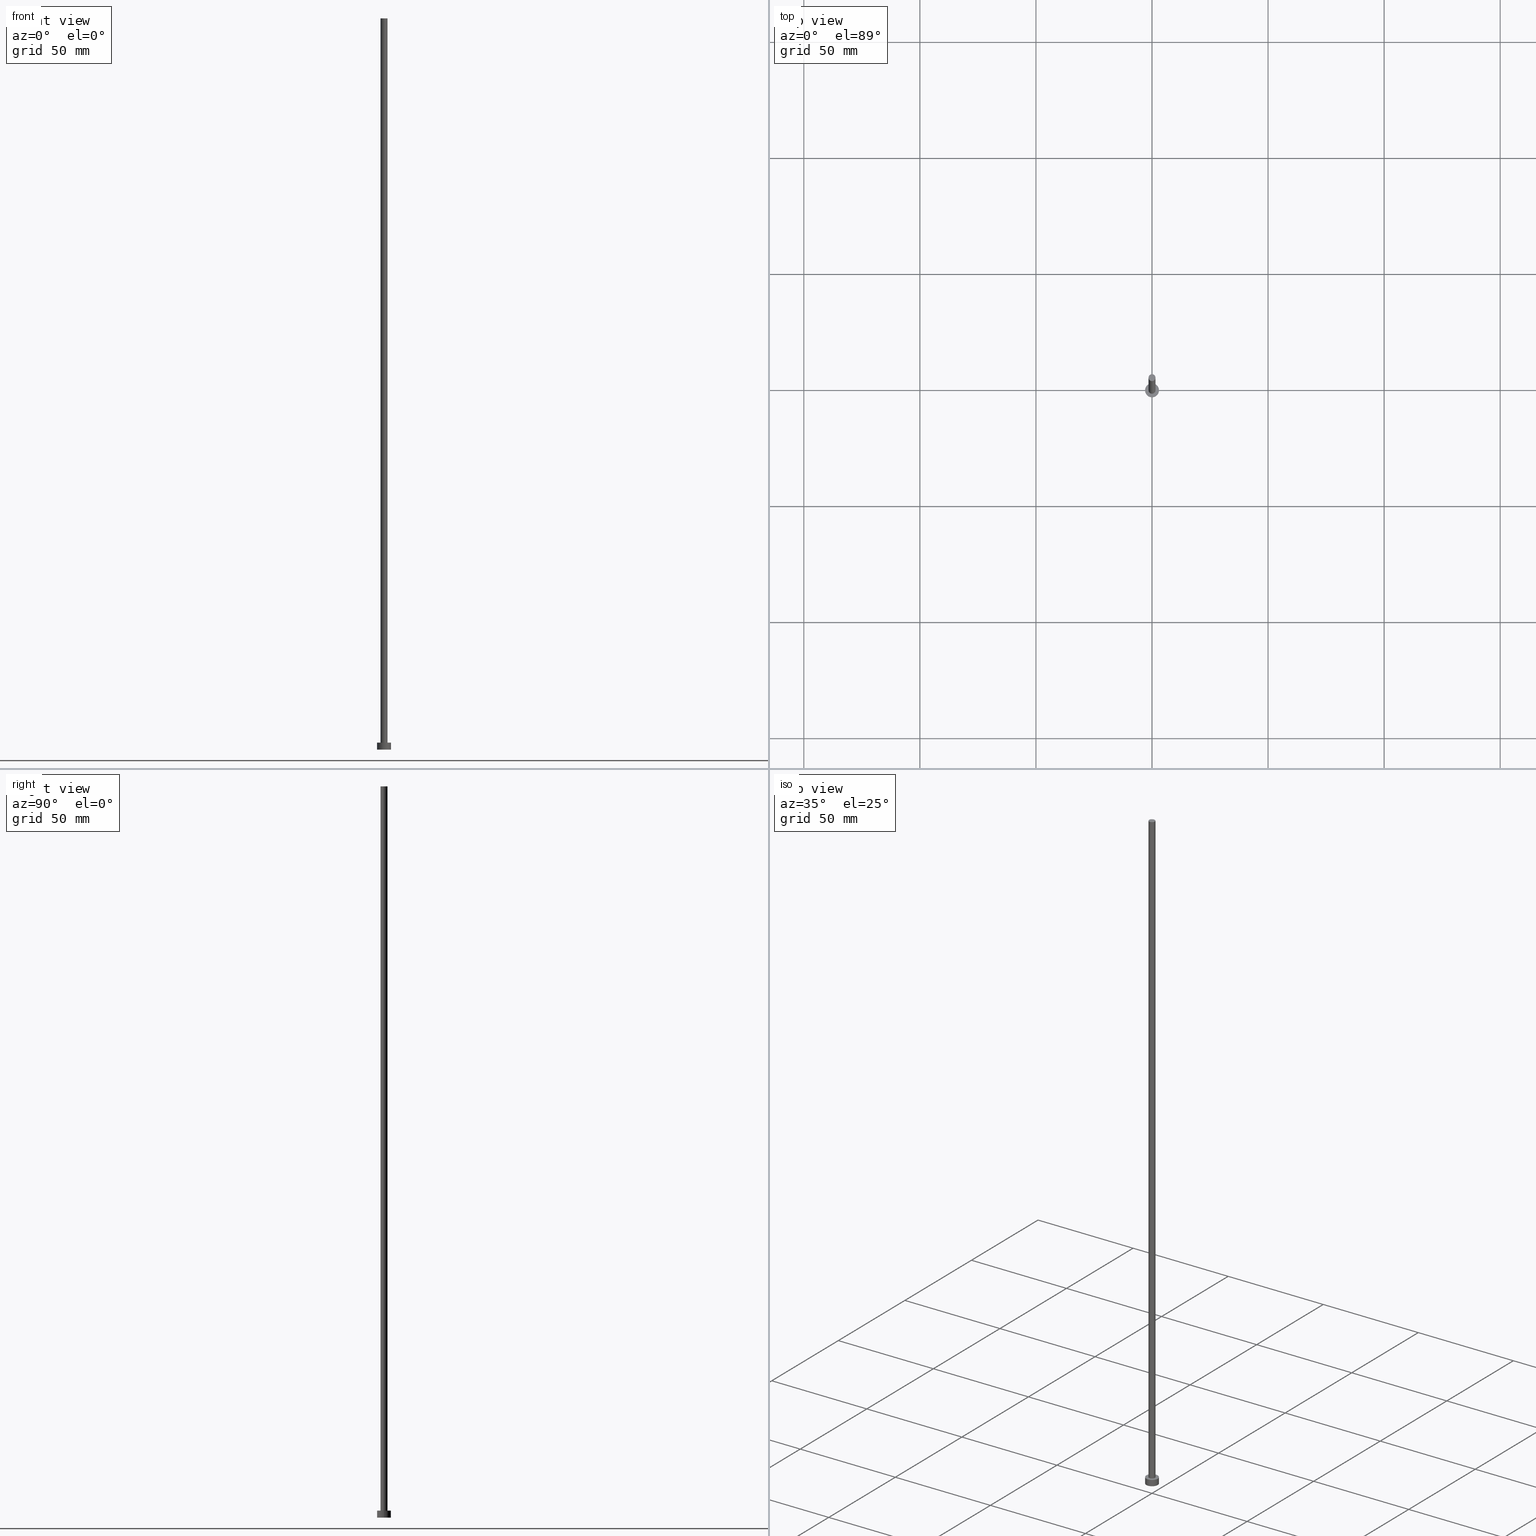
[diagram: canonical four-view strip — front | top / right | iso, engineering-drawing reading convention]
A machine part, canonical four-view strip (front | top / right | iso — engineering-drawing reading convention). The complete STEP part file that produces these views, byte-faithful:
ISO-10303-21;
HEADER;
FILE_DESCRIPTION (( 'STEP AP203' ),
    '1' );
FILE_NAME ('ddd5.STEP',
    '2023-02-12T12:13:03',
    ( '' ),
    ( '' ),
    'SwSTEP 2.0',
    'SolidWorks 2019',
    '' );
FILE_SCHEMA (( 'CONFIG_CONTROL_DESIGN' ));
ENDSEC;

DATA;
#1 = DIRECTION ( 'NONE',  ( 1.000000000000000000, 0.000000000000000000, 0.000000000000000000 ) ) ;
#2 = DIRECTION ( 'NONE',  ( -0.000000000000000000, -0.000000000000000000, -1.000000000000000000 ) ) ;
#3 = ORIENTED_EDGE ( 'NONE', *, *, #143, .F. ) ;
#4 = EDGE_LOOP ( 'NONE', ( #127, #204, #118, #193 ) ) ;
#5 = EDGE_LOOP ( 'NONE', ( #34, #139 ) ) ;
#6 = COORDINATED_UNIVERSAL_TIME_OFFSET ( 1, 0, .AHEAD. ) ;
#7 = CARTESIAN_POINT ( 'NONE',  ( -3.000000000000000444, 0.000000000000000000, 0.000000000000000000 ) ) ;
#8 = PERSON_AND_ORGANIZATION ( #69, #153 ) ;
#9 = DIRECTION ( 'NONE',  ( -0.000000000000000000, -0.000000000000000000, -1.000000000000000000 ) ) ;
#10 = CARTESIAN_POINT ( 'NONE',  ( 0.000000000000000000, 0.000000000000000000, 3.000000000000000000 ) ) ;
#11 = AXIS2_PLACEMENT_3D ( 'NONE', #239, #178, #254 ) ;
#12 = LINE ( 'NONE', #212, #20 ) ;
#13 = EDGE_CURVE ( 'NONE', #119, #244, #164, .T. ) ;
#14 = CARTESIAN_POINT ( 'NONE',  ( 3.000000000000000444, 3.673940397442060361E-16, 0.000000000000000000 ) ) ;
#15 = CC_DESIGN_PERSON_AND_ORGANIZATION_ASSIGNMENT ( #124, #65, ( #19 ) ) ;
#16 = CARTESIAN_POINT ( 'NONE',  ( 0.000000000000000000, 0.000000000000000000, 0.000000000000000000 ) ) ;
#17 = CARTESIAN_POINT ( 'NONE',  ( 0.000000000000000000, 0.000000000000000000, 3.000000000000000000 ) ) ;
#18 = CARTESIAN_POINT ( 'NONE',  ( -1.500000000000000222, 0.000000000000000000, 3.000000000000000000 ) ) ;
#19 = PRODUCT_DEFINITION ( 'NEZN�M�', '', #221, #236 ) ;
#20 = VECTOR ( 'NONE', #57, 1000.000000000000000 ) ;
#21 = APPLICATION_PROTOCOL_DEFINITION ( 'international standard', 'config_control_design', 1994, #230 ) ;
#22 = EDGE_LOOP ( 'NONE', ( #155, #141 ) ) ;
#23 = APPROVAL_DATE_TIME ( #187, #135 ) ;
#24 = EDGE_CURVE ( 'NONE', #195, #131, #243, .T. ) ;
#25 = LINE ( 'NONE', #166, #42 ) ;
#26 = CALENDAR_DATE ( 2023, 12, 2 ) ;
#27 = AXIS2_PLACEMENT_3D ( 'NONE', #196, #158, #176 ) ;
#28 = CARTESIAN_POINT ( 'NONE',  ( 0.000000000000000000, 0.000000000000000000, 315.0000000000000000 ) ) ;
#29 = PERSON_AND_ORGANIZATION ( #69, #153 ) ;
#30 = CYLINDRICAL_SURFACE ( 'NONE', #198, 3.000000000000000444 ) ;
#31 = APPROVAL_DATE_TIME ( #49, #229 ) ;
#32 = APPROVAL_PERSON_ORGANIZATION ( #129, #181, #163 ) ;
#33 =( NAMED_UNIT ( * ) PLANE_ANGLE_UNIT ( ) SI_UNIT ( $, .RADIAN. ) );
#34 = ORIENTED_EDGE ( 'NONE', *, *, #77, .F. ) ;
#35 = CARTESIAN_POINT ( 'NONE',  ( 0.000000000000000000, 0.000000000000000000, 315.0000000000000000 ) ) ;
#36 = DIRECTION ( 'NONE',  ( 1.000000000000000000, 0.000000000000000000, 0.000000000000000000 ) ) ;
#37 = DIRECTION ( 'NONE',  ( -1.000000000000000000, 0.000000000000000000, 0.000000000000000000 ) ) ;
#38 = ADVANCED_FACE ( 'NONE', ( #206 ), #30, .T. ) ;
#39 = CC_DESIGN_APPROVAL ( #181, ( #19 ) ) ;
#40 = ORIENTED_EDGE ( 'NONE', *, *, #237, .F. ) ;
#41 = APPROVAL_DATE_TIME ( #50, #181 ) ;
#42 = VECTOR ( 'NONE', #109, 1000.000000000000000 ) ;
#43 = PERSON_AND_ORGANIZATION ( #69, #153 ) ;
#44 = CALENDAR_DATE ( 2023, 12, 2 ) ;
#45 = DIRECTION ( 'NONE',  ( 1.000000000000000000, 0.000000000000000000, 0.000000000000000000 ) ) ;
#46 = APPLICATION_PROTOCOL_DEFINITION ( 'international standard', 'config_control_design', 1994, #157 ) ;
#47 = EDGE_CURVE ( 'NONE', #182, #195, #25, .T. ) ;
#48 = AXIS2_PLACEMENT_3D ( 'NONE', #126, #64, #251 ) ;
#49 = DATE_AND_TIME ( #44, #248 ) ;
#50 = DATE_AND_TIME ( #26, #74 ) ;
#51 = ORIENTED_EDGE ( 'NONE', *, *, #249, .T. ) ;
#52 = CARTESIAN_POINT ( 'NONE',  ( 0.000000000000000000, 0.000000000000000000, 0.000000000000000000 ) ) ;
#53 = CC_DESIGN_SECURITY_CLASSIFICATION ( #63, ( #221 ) ) ;
#54 = FACE_OUTER_BOUND ( 'NONE', #4, .T. ) ;
#55 = PRODUCT ( 'ddd5', 'ddd5', '', ( #160 ) ) ;
#56 = ORIENTED_EDGE ( 'NONE', *, *, #110, .T. ) ;
#57 = DIRECTION ( 'NONE',  ( -0.000000000000000000, -0.000000000000000000, -1.000000000000000000 ) ) ;
#58 = CC_DESIGN_PERSON_AND_ORGANIZATION_ASSIGNMENT ( #43, #87, ( #221 ) ) ;
#59 = AXIS2_PLACEMENT_3D ( 'NONE', #35, #214, #81 ) ;
#60 = CARTESIAN_POINT ( 'NONE',  ( 0.000000000000000000, 0.000000000000000000, 315.0000000000000000 ) ) ;
#61 = ORIENTED_EDGE ( 'NONE', *, *, #85, .F. ) ;
#62 = DIRECTION ( 'NONE',  ( 0.000000000000000000, 0.000000000000000000, 1.000000000000000000 ) ) ;
#63 = SECURITY_CLASSIFICATION ( '', '', #192 ) ;
#64 = DIRECTION ( 'NONE',  ( -0.000000000000000000, -0.000000000000000000, -1.000000000000000000 ) ) ;
#65 = PERSON_AND_ORGANIZATION_ROLE ( 'creator' ) ;
#66 = DIRECTION ( 'NONE',  ( 1.000000000000000000, 0.000000000000000000, -0.000000000000000000 ) ) ;
#67 = DIRECTION ( 'NONE',  ( -1.000000000000000000, 0.000000000000000000, 0.000000000000000000 ) ) ;
#68 = EDGE_CURVE ( 'NONE', #244, #111, #190, .T. ) ;
#69 = PERSON ( 'NEUR�EN�', 'NEUR�EN�', 'NEUR�EN�', ('NEUR�EN�'), ('NEUR�EN�'), ('NEUR�EN�') ) ;
#70 = CYLINDRICAL_SURFACE ( 'NONE', #76, 1.500000000000000222 ) ;
#71 = ADVANCED_FACE ( 'NONE', ( #107 ), #89, .T. ) ;
#72 = UNCERTAINTY_MEASURE_WITH_UNIT (LENGTH_MEASURE( 1.000000000000000082E-05 ), #136, 'distance_accuracy_value', 'NONE');
#73 =( NAMED_UNIT ( * ) SI_UNIT ( $, .STERADIAN. ) SOLID_ANGLE_UNIT ( ) );
#74 = LOCAL_TIME ( 13, 13, 3.000000000000000000, #207 ) ;
#75 = ORIENTED_EDGE ( 'NONE', *, *, #110, .F. ) ;
#76 = AXIS2_PLACEMENT_3D ( 'NONE', #148, #223, #67 ) ;
#77 = EDGE_CURVE ( 'NONE', #131, #195, #133, .T. ) ;
#78 = LOCAL_TIME ( 13, 13, 3.000000000000000000, #6 ) ;
#79 = DIRECTION ( 'NONE',  ( 0.000000000000000000, 0.000000000000000000, 1.000000000000000000 ) ) ;
#80 = ORIENTED_EDGE ( 'NONE', *, *, #13, .T. ) ;
#81 = DIRECTION ( 'NONE',  ( 1.000000000000000000, 0.000000000000000000, 0.000000000000000000 ) ) ;
#82 = VERTEX_POINT ( 'NONE', #7 ) ;
#83 = AXIS2_PLACEMENT_3D ( 'NONE', #16, #200, #1 ) ;
#84 = CIRCLE ( 'NONE', #233, 1.500000000000000222 ) ;
#85 = EDGE_CURVE ( 'NONE', #182, #128, #84, .T. ) ;
#86 = CARTESIAN_POINT ( 'NONE',  ( 0.000000000000000000, 0.000000000000000000, 3.000000000000000000 ) ) ;
#87 = PERSON_AND_ORGANIZATION_ROLE ( 'design_supplier' ) ;
#88 = PLANE ( 'NONE',  #151 ) ;
#89 = CYLINDRICAL_SURFACE ( 'NONE', #48, 3.000000000000000444 ) ;
#90 = CARTESIAN_POINT ( 'NONE',  ( 3.000000000000000444, 3.673940397442060361E-16, 3.000000000000000000 ) ) ;
#91 = AXIS2_PLACEMENT_3D ( 'NONE', #203, #62, #165 ) ;
#92 = DIRECTION ( 'NONE',  ( -0.000000000000000000, -0.000000000000000000, -1.000000000000000000 ) ) ;
#93 = DIRECTION ( 'NONE',  ( 1.000000000000000000, 0.000000000000000000, 0.000000000000000000 ) ) ;
#94 = PRODUCT_DEFINITION_SHAPE ( 'NONE', 'NONE',  #19 ) ;
#95 = AXIS2_PLACEMENT_3D ( 'NONE', #17, #99, #36 ) ;
#96 = DIRECTION ( 'NONE',  ( 0.000000000000000000, 0.000000000000000000, 1.000000000000000000 ) ) ;
#97 = APPROVAL_PERSON_ORGANIZATION ( #241, #229, #180 ) ;
#98 = ADVANCED_FACE ( 'NONE', ( #253, #209 ), #88, .T. ) ;
#99 = DIRECTION ( 'NONE',  ( 0.000000000000000000, 0.000000000000000000, 1.000000000000000000 ) ) ;
#100 = CYLINDRICAL_SURFACE ( 'NONE', #142, 1.500000000000000222 ) ;
#101 = ORIENTED_EDGE ( 'NONE', *, *, #68, .T. ) ;
#102 = DIRECTION ( 'NONE',  ( 0.000000000000000000, 0.000000000000000000, 1.000000000000000000 ) ) ;
#103 = APPROVAL_ROLE ( '' ) ;
#104 = LOCAL_TIME ( 13, 13, 3.000000000000000000, #252 ) ;
#105 = ADVANCED_FACE ( 'NONE', ( #188 ), #70, .T. ) ;
#106 = DIRECTION ( 'NONE',  ( 0.000000000000000000, 0.000000000000000000, 1.000000000000000000 ) ) ;
#107 = FACE_OUTER_BOUND ( 'NONE', #202, .T. ) ;
#108 = CALENDAR_DATE ( 2023, 12, 2 ) ;
#109 = DIRECTION ( 'NONE',  ( -0.000000000000000000, -0.000000000000000000, -1.000000000000000000 ) ) ;
#110 = EDGE_CURVE ( 'NONE', #119, #82, #228, .T. ) ;
#111 = VERTEX_POINT ( 'NONE', #14 ) ;
#112 = CIRCLE ( 'NONE', #11, 3.000000000000000444 ) ;
#113 = DIRECTION ( 'NONE',  ( 1.000000000000000000, 0.000000000000000000, 0.000000000000000000 ) ) ;
#114 = AXIS2_PLACEMENT_3D ( 'NONE', #10, #102, #45 ) ;
#115 = CC_DESIGN_PERSON_AND_ORGANIZATION_ASSIGNMENT ( #29, #167, ( #221 ) ) ;
#116 = CIRCLE ( 'NONE', #197, 3.000000000000000444 ) ;
#117 = EDGE_CURVE ( 'NONE', #128, #182, #218, .T. ) ;
#118 = ORIENTED_EDGE ( 'NONE', *, *, #216, .T. ) ;
#119 = VERTEX_POINT ( 'NONE', #217 ) ;
#120 = CARTESIAN_POINT ( 'NONE',  ( 3.000000000000000444, 3.673940397442060361E-16, 3.000000000000000000 ) ) ;
#121 = EDGE_LOOP ( 'NONE', ( #168, #3 ) ) ;
#122 = PLANE ( 'NONE',  #226 ) ;
#123 =( GEOMETRIC_REPRESENTATION_CONTEXT ( 3 ) GLOBAL_UNCERTAINTY_ASSIGNED_CONTEXT ( ( #72 ) ) GLOBAL_UNIT_ASSIGNED_CONTEXT ( ( #136, #33, #73 ) ) REPRESENTATION_CONTEXT ( 'NONE', 'WORKASPACE' ) );
#124 = PERSON_AND_ORGANIZATION ( #69, #153 ) ;
#125 = AXIS2_PLACEMENT_3D ( 'NONE', #179, #161, #113 ) ;
#126 = CARTESIAN_POINT ( 'NONE',  ( 0.000000000000000000, 0.000000000000000000, 3.000000000000000000 ) ) ;
#127 = ORIENTED_EDGE ( 'NONE', *, *, #47, .F. ) ;
#128 = VERTEX_POINT ( 'NONE', #156 ) ;
#129 = PERSON_AND_ORGANIZATION ( #69, #153 ) ;
#130 = DATE_TIME_ROLE ( 'creation_date' ) ;
#131 = VERTEX_POINT ( 'NONE', #18 ) ;
#132 = CC_DESIGN_APPROVAL ( #229, ( #63 ) ) ;
#133 = CIRCLE ( 'NONE', #114, 1.500000000000000222 ) ;
#134 = CARTESIAN_POINT ( 'NONE',  ( 1.500000000000000222, 1.836970198721030181E-16, 315.0000000000000000 ) ) ;
#135 = APPROVAL ( #250, 'NEUR�EN�' ) ;
#136 =( LENGTH_UNIT ( ) NAMED_UNIT ( * ) SI_UNIT ( .MILLI., .METRE. ) );
#137 = ORIENTED_EDGE ( 'NONE', *, *, #237, .T. ) ;
#138 = FACE_OUTER_BOUND ( 'NONE', #22, .T. ) ;
#139 = ORIENTED_EDGE ( 'NONE', *, *, #24, .F. ) ;
#140 = SHAPE_DEFINITION_REPRESENTATION ( #94, #174 ) ;
#141 = ORIENTED_EDGE ( 'NONE', *, *, #85, .T. ) ;
#142 = AXIS2_PLACEMENT_3D ( 'NONE', #60, #2, #37 ) ;
#143 = EDGE_CURVE ( 'NONE', #111, #82, #116, .T. ) ;
#144 = DIRECTION ( 'NONE',  ( 1.000000000000000000, 0.000000000000000000, 0.000000000000000000 ) ) ;
#145 = PERSON_AND_ORGANIZATION_ROLE ( 'classification_officer' ) ;
#146 = ORIENTED_EDGE ( 'NONE', *, *, #216, .F. ) ;
#147 = APPROVAL_STATUS ( 'not_yet_approved' ) ;
#148 = CARTESIAN_POINT ( 'NONE',  ( 0.000000000000000000, 0.000000000000000000, 315.0000000000000000 ) ) ;
#149 = CC_DESIGN_PERSON_AND_ORGANIZATION_ASSIGNMENT ( #245, #227, ( #55 ) ) ;
#150 = ORIENTED_EDGE ( 'NONE', *, *, #68, .F. ) ;
#151 = AXIS2_PLACEMENT_3D ( 'NONE', #162, #106, #66 ) ;
#152 = DATE_TIME_ROLE ( 'classification_date' ) ;
#153 = ORGANIZATION ( 'NEUR�EN�', 'NEUR�EN�', '' ) ;
#154 = CARTESIAN_POINT ( 'NONE',  ( 1.500000000000000222, 1.836970198721030181E-16, 3.000000000000000000 ) ) ;
#155 = ORIENTED_EDGE ( 'NONE', *, *, #117, .T. ) ;
#156 = CARTESIAN_POINT ( 'NONE',  ( -1.500000000000000222, 0.000000000000000000, 315.0000000000000000 ) ) ;
#157 = APPLICATION_CONTEXT ( 'configuration controlled 3d designs of mechanical parts and assemblies' ) ;
#158 = DIRECTION ( 'NONE',  ( 0.000000000000000000, 0.000000000000000000, 1.000000000000000000 ) ) ;
#159 = ORIENTED_EDGE ( 'NONE', *, *, #47, .T. ) ;
#160 = MECHANICAL_CONTEXT ( 'NONE', #230, 'mechanical' ) ;
#161 = DIRECTION ( 'NONE',  ( 0.000000000000000000, 0.000000000000000000, 1.000000000000000000 ) ) ;
#162 = CARTESIAN_POINT ( 'NONE',  ( 0.000000000000000000, 0.000000000000000000, 3.000000000000000000 ) ) ;
#163 = APPROVAL_ROLE ( '' ) ;
#164 = CIRCLE ( 'NONE', #95, 3.000000000000000444 ) ;
#165 = DIRECTION ( 'NONE',  ( 1.000000000000000000, 0.000000000000000000, 0.000000000000000000 ) ) ;
#166 = CARTESIAN_POINT ( 'NONE',  ( 1.500000000000000222, 1.836970198721030181E-16, 315.0000000000000000 ) ) ;
#167 = PERSON_AND_ORGANIZATION_ROLE ( 'creator' ) ;
#168 = ORIENTED_EDGE ( 'NONE', *, *, #249, .F. ) ;
#169 = CIRCLE ( 'NONE', #83, 3.000000000000000444 ) ;
#170 = DIRECTION ( 'NONE',  ( 1.000000000000000000, 0.000000000000000000, -0.000000000000000000 ) ) ;
#171 = CALENDAR_DATE ( 2023, 12, 2 ) ;
#172 = ORIENTED_EDGE ( 'NONE', *, *, #13, .F. ) ;
#173 = PLANE ( 'NONE',  #27 ) ;
#174 = ADVANCED_BREP_SHAPE_REPRESENTATION ( 'ddd5', ( #199, #91 ), #123 ) ;
#175 = COORDINATED_UNIVERSAL_TIME_OFFSET ( 1, 0, .AHEAD. ) ;
#176 = DIRECTION ( 'NONE',  ( 1.000000000000000000, 0.000000000000000000, -0.000000000000000000 ) ) ;
#177 = APPROVAL_PERSON_ORGANIZATION ( #205, #135, #103 ) ;
#178 = DIRECTION ( 'NONE',  ( 0.000000000000000000, 0.000000000000000000, 1.000000000000000000 ) ) ;
#179 = CARTESIAN_POINT ( 'NONE',  ( 0.000000000000000000, 0.000000000000000000, 3.000000000000000000 ) ) ;
#180 = APPROVAL_ROLE ( '' ) ;
#181 = APPROVAL ( #147, 'NEUR�EN�' ) ;
#182 = VERTEX_POINT ( 'NONE', #134 ) ;
#183 = APPROVAL_STATUS ( 'not_yet_approved' ) ;
#184 = ORIENTED_EDGE ( 'NONE', *, *, #143, .T. ) ;
#185 = ADVANCED_FACE ( 'NONE', ( #54 ), #100, .T. ) ;
#186 = DIRECTION ( 'NONE',  ( 0.000000000000000000, 0.000000000000000000, 1.000000000000000000 ) ) ;
#187 = DATE_AND_TIME ( #108, #104 ) ;
#188 = FACE_OUTER_BOUND ( 'NONE', #215, .T. ) ;
#189 = VECTOR ( 'NONE', #92, 1000.000000000000000 ) ;
#190 = LINE ( 'NONE', #90, #234 ) ;
#191 = CC_DESIGN_PERSON_AND_ORGANIZATION_ASSIGNMENT ( #8, #145, ( #63 ) ) ;
#192 = SECURITY_CLASSIFICATION_LEVEL ( 'unclassified' ) ;
#193 = ORIENTED_EDGE ( 'NONE', *, *, #77, .T. ) ;
#194 = DIRECTION ( 'NONE',  ( -0.000000000000000000, -0.000000000000000000, -1.000000000000000000 ) ) ;
#195 = VERTEX_POINT ( 'NONE', #154 ) ;
#196 = CARTESIAN_POINT ( 'NONE',  ( 0.000000000000000000, 0.000000000000000000, 315.0000000000000000 ) ) ;
#197 = AXIS2_PLACEMENT_3D ( 'NONE', #52, #96, #93 ) ;
#198 = AXIS2_PLACEMENT_3D ( 'NONE', #86, #9, #247 ) ;
#199 = MANIFOLD_SOLID_BREP ( 'P�idat vysunut�m3', #238 ) ;
#200 = DIRECTION ( 'NONE',  ( 0.000000000000000000, 0.000000000000000000, 1.000000000000000000 ) ) ;
#201 = ADVANCED_FACE ( 'NONE', ( #138 ), #173, .T. ) ;
#202 = EDGE_LOOP ( 'NONE', ( #40, #101, #184, #75 ) ) ;
#203 = CARTESIAN_POINT ( 'NONE',  ( 0.000000000000000000, 0.000000000000000000, 0.000000000000000000 ) ) ;
#204 = ORIENTED_EDGE ( 'NONE', *, *, #117, .F. ) ;
#205 = PERSON_AND_ORGANIZATION ( #69, #153 ) ;
#206 = FACE_OUTER_BOUND ( 'NONE', #220, .T. ) ;
#207 = COORDINATED_UNIVERSAL_TIME_OFFSET ( 1, 0, .AHEAD. ) ;
#208 = CARTESIAN_POINT ( 'NONE',  ( -3.000000000000000444, 0.000000000000000000, 3.000000000000000000 ) ) ;
#209 = FACE_OUTER_BOUND ( 'NONE', #219, .T. ) ;
#210 = LOCAL_TIME ( 13, 13, 3.000000000000000000, #175 ) ;
#211 = CARTESIAN_POINT ( 'NONE',  ( 0.000000000000000000, 0.000000000000000000, 0.000000000000000000 ) ) ;
#212 = CARTESIAN_POINT ( 'NONE',  ( -1.500000000000000222, 0.000000000000000000, 315.0000000000000000 ) ) ;
#213 = ADVANCED_FACE ( 'NONE', ( #231 ), #122, .F. ) ;
#214 = DIRECTION ( 'NONE',  ( 0.000000000000000000, 0.000000000000000000, 1.000000000000000000 ) ) ;
#215 = EDGE_LOOP ( 'NONE', ( #61, #159, #235, #146 ) ) ;
#216 = EDGE_CURVE ( 'NONE', #128, #131, #12, .T. ) ;
#217 = CARTESIAN_POINT ( 'NONE',  ( -3.000000000000000444, 0.000000000000000000, 3.000000000000000000 ) ) ;
#218 = CIRCLE ( 'NONE', #59, 1.500000000000000222 ) ;
#219 = EDGE_LOOP ( 'NONE', ( #80, #137 ) ) ;
#220 = EDGE_LOOP ( 'NONE', ( #150, #172, #56, #51 ) ) ;
#221 = PRODUCT_DEFINITION_FORMATION_WITH_SPECIFIED_SOURCE ( 'LIBOVOLN�', '', #55, .NOT_KNOWN. ) ;
#222 = CALENDAR_DATE ( 2023, 12, 2 ) ;
#223 = DIRECTION ( 'NONE',  ( -0.000000000000000000, -0.000000000000000000, -1.000000000000000000 ) ) ;
#224 = CC_DESIGN_DATE_AND_TIME_ASSIGNMENT ( #232, #152, ( #63 ) ) ;
#225 = DATE_AND_TIME ( #222, #78 ) ;
#226 = AXIS2_PLACEMENT_3D ( 'NONE', #211, #79, #170 ) ;
#227 = PERSON_AND_ORGANIZATION_ROLE ( 'design_owner' ) ;
#228 = LINE ( 'NONE', #208, #189 ) ;
#229 = APPROVAL ( #183, 'NEUR�EN�' ) ;
#230 = APPLICATION_CONTEXT ( 'configuration controlled 3d designs of mechanical parts and assemblies' ) ;
#231 = FACE_OUTER_BOUND ( 'NONE', #121, .T. ) ;
#232 = DATE_AND_TIME ( #171, #210 ) ;
#233 = AXIS2_PLACEMENT_3D ( 'NONE', #28, #186, #144 ) ;
#234 = VECTOR ( 'NONE', #194, 1000.000000000000000 ) ;
#235 = ORIENTED_EDGE ( 'NONE', *, *, #24, .T. ) ;
#236 = DESIGN_CONTEXT ( 'detailed design', #157, 'design' ) ;
#237 = EDGE_CURVE ( 'NONE', #244, #119, #112, .T. ) ;
#238 = CLOSED_SHELL ( 'NONE', ( #105, #71, #38, #98, #213, #185, #201 ) ) ;
#239 = CARTESIAN_POINT ( 'NONE',  ( 0.000000000000000000, 0.000000000000000000, 3.000000000000000000 ) ) ;
#240 = CC_DESIGN_DATE_AND_TIME_ASSIGNMENT ( #225, #130, ( #19 ) ) ;
#241 = PERSON_AND_ORGANIZATION ( #69, #153 ) ;
#242 = CC_DESIGN_APPROVAL ( #135, ( #221 ) ) ;
#243 = CIRCLE ( 'NONE', #125, 1.500000000000000222 ) ;
#244 = VERTEX_POINT ( 'NONE', #120 ) ;
#245 = PERSON_AND_ORGANIZATION ( #69, #153 ) ;
#246 = COORDINATED_UNIVERSAL_TIME_OFFSET ( 1, 0, .AHEAD. ) ;
#247 = DIRECTION ( 'NONE',  ( -1.000000000000000000, 0.000000000000000000, 0.000000000000000000 ) ) ;
#248 = LOCAL_TIME ( 13, 13, 3.000000000000000000, #246 ) ;
#249 = EDGE_CURVE ( 'NONE', #82, #111, #169, .T. ) ;
#250 = APPROVAL_STATUS ( 'not_yet_approved' ) ;
#251 = DIRECTION ( 'NONE',  ( -1.000000000000000000, 0.000000000000000000, 0.000000000000000000 ) ) ;
#252 = COORDINATED_UNIVERSAL_TIME_OFFSET ( 1, 0, .AHEAD. ) ;
#253 = FACE_BOUND ( 'NONE', #5, .T. ) ;
#254 = DIRECTION ( 'NONE',  ( 1.000000000000000000, 0.000000000000000000, 0.000000000000000000 ) ) ;
#255 = PRODUCT_RELATED_PRODUCT_CATEGORY ( 'detail', '', ( #55 ) ) ;
ENDSEC;
END-ISO-10303-21;
